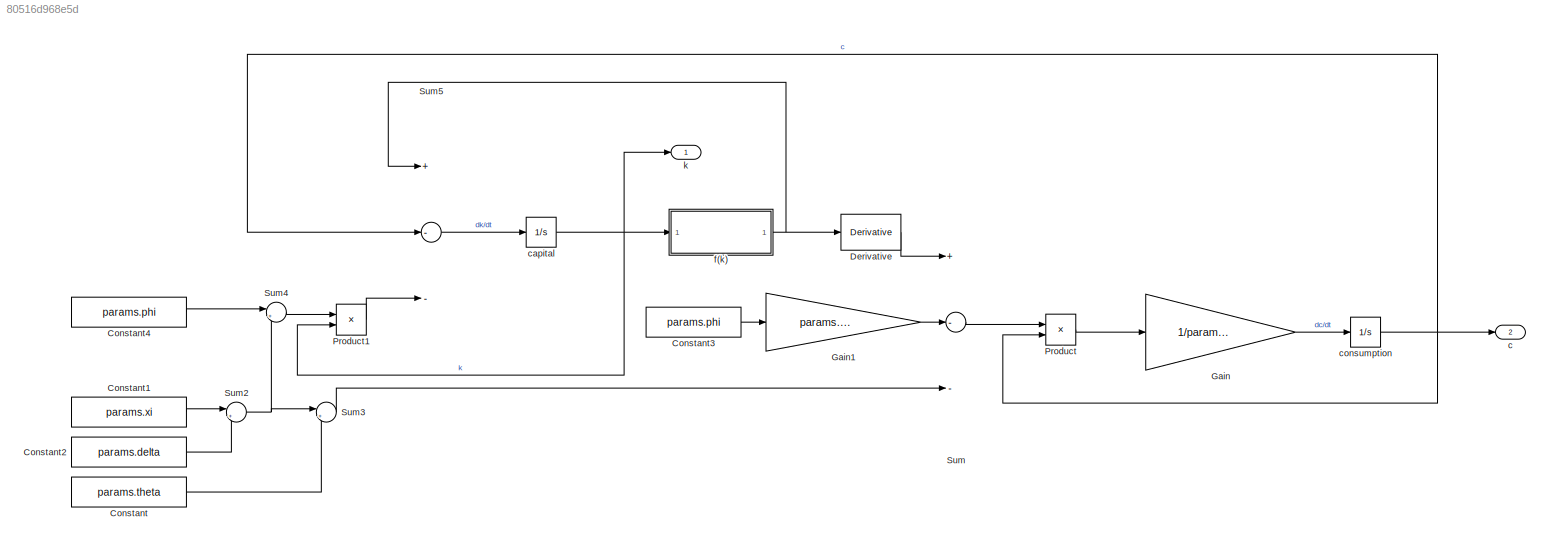
MODEL slx_80516d968e5d
KIND model
CONFIG AbsTol = auto
CONFIG EnableMultiTasking = on
CONFIG FixedStep = auto
CONFIG MaxStep = auto
CONFIG MinStep = auto
CONFIG PreLoadFcn = defineRCKParams
CONFIG RelTol = 1e-3
CONFIG SampleTimeConstraint = Unconstrained
CONFIG Solver = VariableStepAuto
CONFIG SolverName = VariableStepAuto
CONFIG StartTime = 0.0
CONFIG StopTime = 500
BLOCK [Constant] Constant
  Value = params.theta
BLOCK [Constant] Constant1
  Value = params.xi
BLOCK [Constant] Constant2
  Value = params.delta
BLOCK [Constant] Constant3
  Value = params.phi
BLOCK [Constant] Constant4
  Value = params.phi
BLOCK [Derivative] Derivative
BLOCK [Gain] Gain
  Gain = 1/params.rho
  OutDataTypeStr = Inherit: Inherit via internal rule
  ParamDataTypeStr = Inherit: Inherit via internal rule
  SaturateOnIntegerOverflow = off
BLOCK [Gain] Gain1
  Gain = params.rho
  OutDataTypeStr = Inherit: Inherit via internal rule
  ParamDataTypeStr = Inherit: Inherit via internal rule
  SaturateOnIntegerOverflow = off
BLOCK [Product] Product
  InputSameDT = off
  OutDataTypeStr = Inherit: Inherit via internal rule
  Ports = [2, 1]
  RndMeth = Floor
  SaturateOnIntegerOverflow = off
BLOCK [Product] Product1
  InputSameDT = off
  OutDataTypeStr = Inherit: Inherit via internal rule
  Ports = [2, 1]
  RndMeth = Floor
  SaturateOnIntegerOverflow = off
BLOCK [Sum] Sum
  InputSameDT = off
  Inputs = +--
  OutDataTypeStr = Inherit: Inherit via internal rule
  Ports = [3, 1]
  SaturateOnIntegerOverflow = off
BLOCK [Sum] Sum2
  IconShape = round
  InputSameDT = off
  Inputs = |++
  OutDataTypeStr = Inherit: Inherit via internal rule
  Ports = [2, 1]
  SaturateOnIntegerOverflow = off
BLOCK [Sum] Sum3
  IconShape = round
  InputSameDT = off
  Inputs = |++
  OutDataTypeStr = Inherit: Inherit via internal rule
  Ports = [2, 1]
  SaturateOnIntegerOverflow = off
BLOCK [Sum] Sum4
  IconShape = round
  InputSameDT = off
  Inputs = |++
  OutDataTypeStr = Inherit: Inherit via internal rule
  Ports = [2, 1]
  SaturateOnIntegerOverflow = off
BLOCK [Sum] Sum5
  InputSameDT = off
  Inputs = +--
  OutDataTypeStr = Inherit: Inherit via internal rule
  Ports = [3, 1]
  SaturateOnIntegerOverflow = off
BLOCK [Outport] c
  IconDisplay = Port number
  Port = 2
BLOCK [Integrator] capital
  InitialCondition = params.k0
  Ports = [1, 1]
BLOCK [Integrator] consumption
  InitialCondition = params.c0
  Ports = [1, 1]
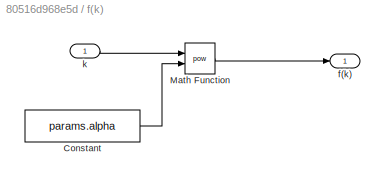
BLOCK [SubSystem] f(k)
  Ports = [1, 1]
  RequestExecContextInheritance = off
  Variant = off
BLOCK [Constant] f(k)/Constant
  Value = params.alpha
BLOCK [Math] f(k)/Math Function
  Operator = pow
  Ports = [2, 1]
BLOCK [Outport] f(k)/f(k)
  IconDisplay = Port number
BLOCK [Inport] f(k)/k
  IconDisplay = Port number
BLOCK [Outport] k
  IconDisplay = Port number
LINE Constant1:1 -> Sum2:1
LINE Constant2:1 -> Sum2:2
LINE Constant3:1 -> Gain1:1
LINE Constant4:1 -> Sum4:1
LINE Constant:1 -> Sum3:2
LINE Derivative:1 -> Sum:1
LINE Gain1:1 -> Sum:2
LINE Gain:1 -> consumption:1
LINE Product1:1 -> Sum5:3
LINE Product:1 -> Gain:1
NET Sum2:1 -> Sum3:1, Sum4:2
LINE Sum3:1 -> Sum:3
LINE Sum4:1 -> Product1:1
LINE Sum5:1 -> capital:1
LINE Sum:1 -> Product:1
NET capital:1 -> Product1:2, f(k):1, k:1
NET consumption:1 -> Product:2, Sum5:2, c:1
LINE f(k)/Constant:1 -> f(k)/Math Function:2
LINE f(k)/Math Function:1 -> f(k)/f(k):1
LINE f(k)/k:1 -> f(k)/Math Function:1
NET f(k):1 -> Derivative:1, Sum5:1
note: NET lines group one-source signal fan-out (src -> all destinations, sorted); 1:1 wires keep LINE
